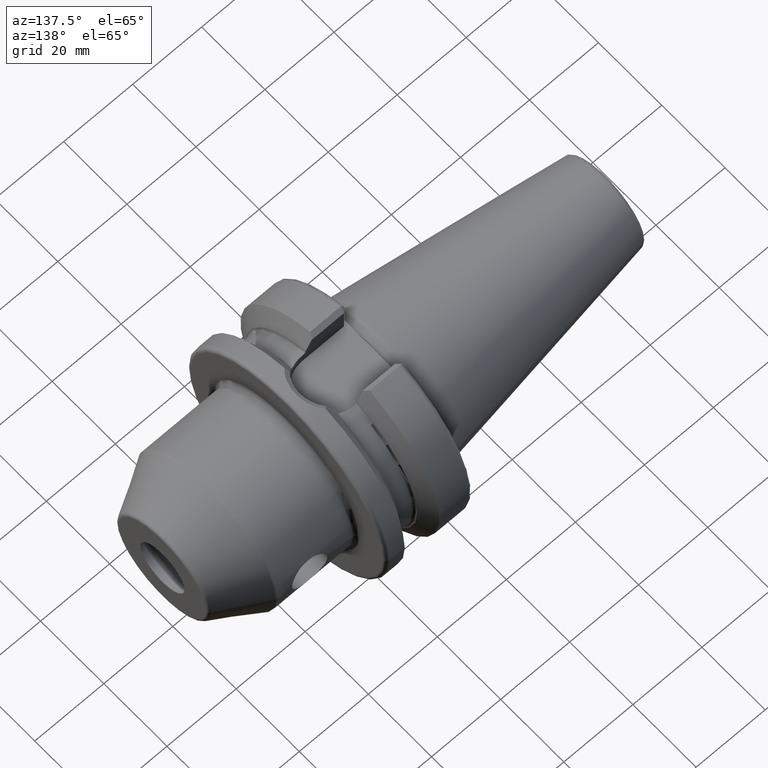
[diagram: clean part render]
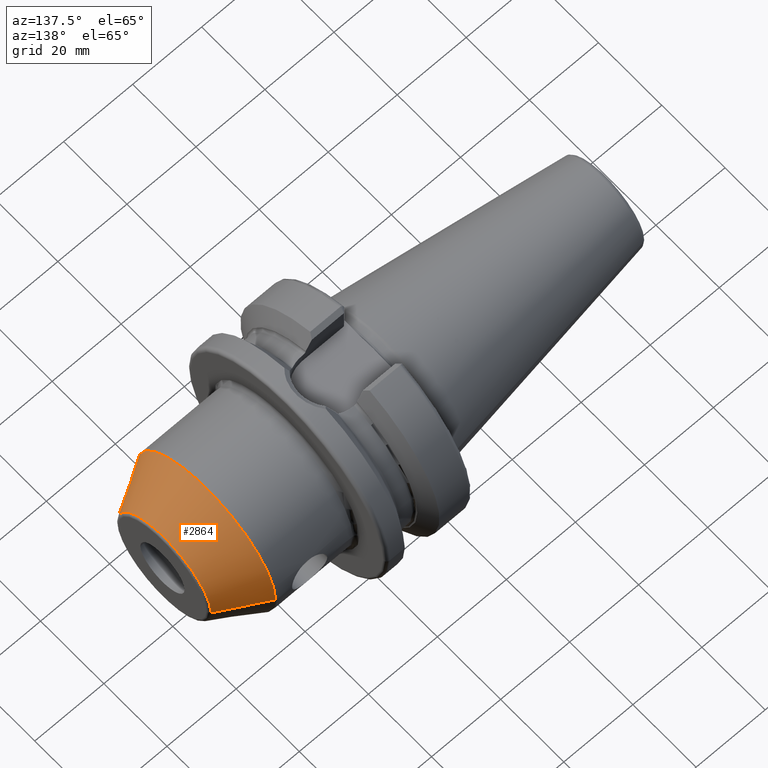
[diagram: same view with one face highlighted and labeled with its STEP entity id]
A machine part, auxiliary view. The second image highlights one B-rep face of the part: STEP entity #2864.
In plain terms, the highlighted conical surface has half-angle 30 deg.
Its self-contained STEP definition (entity closure, byte-faithful):
#1036=DIRECTION('',(-8.660254037844E-1,-5.E-1,8.516192137193E-14));
#1037=VECTOR('',#1036,1.416580753731E1);
#1038=CARTESIAN_POINT('',(6.25E1,-1.478312163513E1,2.347900990903E-13));
#1039=LINE('',#1038,#1037);
#1045=DIRECTION('',(-8.660254037844E-1,5.E-1,-8.423797279783E-14));
#1046=VECTOR('',#1045,1.416580753731E1);
#1047=CARTESIAN_POINT('',(6.25E1,1.478312163513E1,-2.385282679186E-13));
#1048=LINE('',#1047,#1046);
#1049=CARTESIAN_POINT('',(5.023205080757E1,0.E0,0.E0));
#1050=DIRECTION('',(-1.E0,0.E0,0.E0));
#1051=DIRECTION('',(0.E0,-1.E0,0.E0));
#1052=AXIS2_PLACEMENT_3D('',#1049,#1050,#1051);
#1054=CARTESIAN_POINT('',(6.25E1,0.E0,0.E0));
#1055=DIRECTION('',(-1.E0,0.E0,0.E0));
#1056=DIRECTION('',(0.E0,-1.E0,0.E0));
#1057=AXIS2_PLACEMENT_3D('',#1054,#1055,#1056);
#1541=CARTESIAN_POINT('',(5.023205080757E1,2.186602540378E1,0.E0));
#1542=CARTESIAN_POINT('',(5.023205080757E1,-2.186602540378E1,0.E0));
#1543=VERTEX_POINT('',#1541);
#1544=VERTEX_POINT('',#1542);
#1545=CARTESIAN_POINT('',(6.25E1,1.478312163513E1,0.E0));
#1546=CARTESIAN_POINT('',(6.25E1,-1.478312163513E1,0.E0));
#1547=VERTEX_POINT('',#1545);
#1548=VERTEX_POINT('',#1546);
#2852=CARTESIAN_POINT('',(5.636602540378E1,0.E0,0.E0));
#2853=DIRECTION('',(-1.E0,0.E0,0.E0));
#2854=DIRECTION('',(0.E0,1.E0,0.E0));
#2855=AXIS2_PLACEMENT_3D('',#2852,#2853,#2854);
#2856=CONICAL_SURFACE('',#2855,1.832457351946E1,3.E1);
#2857=ORIENTED_EDGE('',*,*,#2708,.T.);
#2858=ORIENTED_EDGE('',*,*,#2847,.F.);
#2860=ORIENTED_EDGE('',*,*,#2859,.F.);
#2861=ORIENTED_EDGE('',*,*,#2844,.T.);
#2862=EDGE_LOOP('',(#2857,#2858,#2860,#2861));
#2863=FACE_OUTER_BOUND('',#2862,.F.);
#2864=ADVANCED_FACE('',(#2863),#2856,.T.);
#1053=CIRCLE('',#1052,2.186602540378E1);
#1058=CIRCLE('',#1057,1.478312163513E1);
#2708=EDGE_CURVE('',#1544,#1543,#1053,.T.);
#2844=EDGE_CURVE('',#1548,#1544,#1039,.T.);
#2847=EDGE_CURVE('',#1547,#1543,#1048,.T.);
#2859=EDGE_CURVE('',#1548,#1547,#1058,.T.);